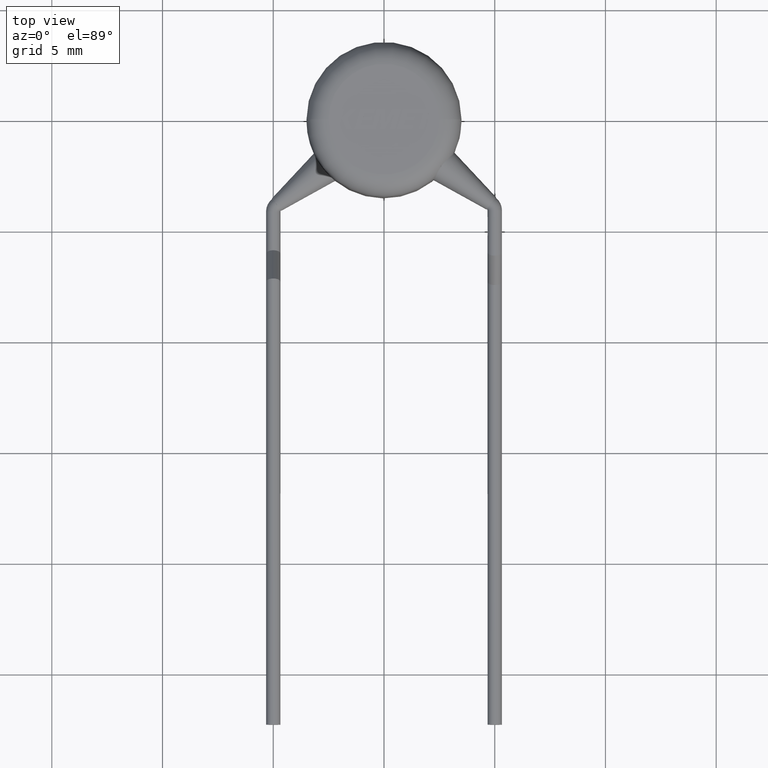
[diagram: clean part render]
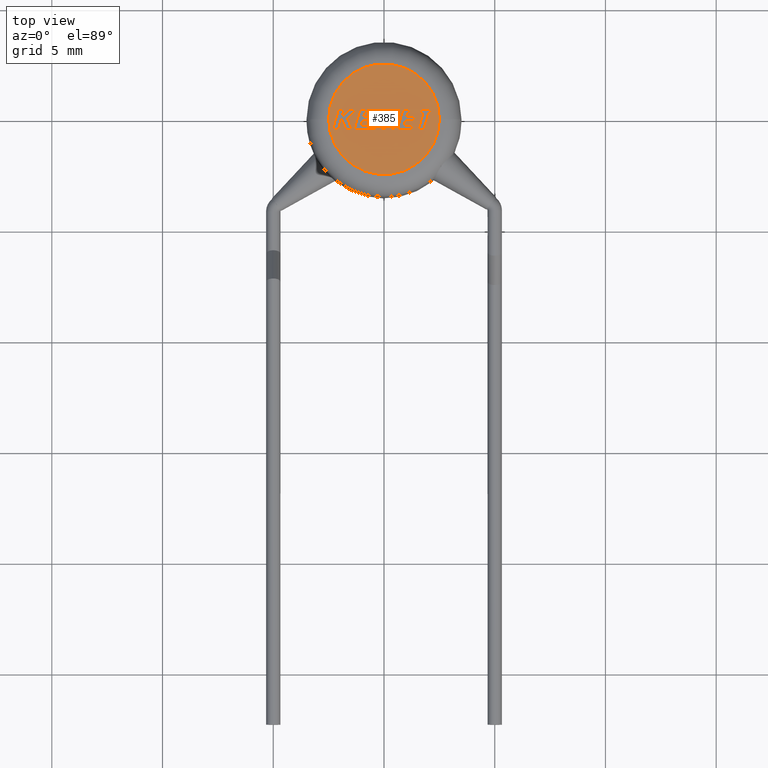
[diagram: same view with one face highlighted and labeled with its STEP entity id]
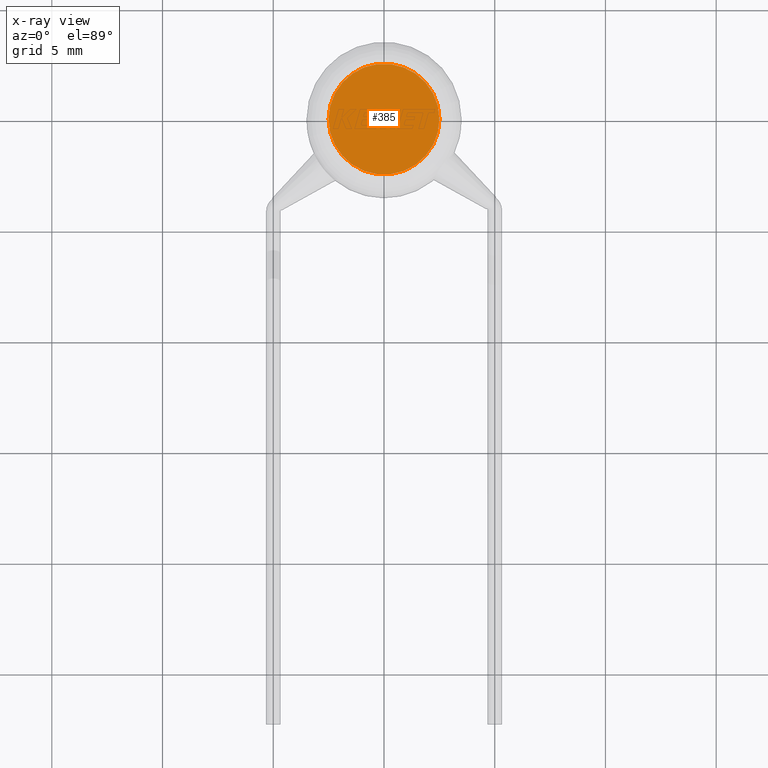
[diagram: x-ray of the same camera — body ghosted, the highlighted face saturated]
A machine part, top view. The second image highlights one B-rep face of the part: STEP entity #385.
The next image is the same camera in x-ray: the body ghosted, the highlighted face saturated — about 0% of this face is hidden behind the body in this view.
In plain terms, the highlighted planar face has unit normal (0, 0, 1).
Its self-contained STEP definition (entity closure, byte-faithful):
#385 = ADVANCED_FACE ( 'NONE', ( #3971 ), #2056, .T. ) ;
#541 = CIRCLE ( 'NONE', #2548, 2.499999999999999600 ) ;
#779 = CARTESIAN_POINT ( 'NONE',  ( 0.0000000000000000000, 0.0000000000000000000, 5.500000000000000000 ) ) ;
#1068 = EDGE_CURVE ( 'NONE', #4197, #3249, #3657, .T. ) ;
#1091 = DIRECTION ( 'NONE',  ( 1.000000000000000000, 0.0000000000000000000, 0.0000000000000000000 ) ) ;
#1167 = DIRECTION ( 'NONE',  ( 1.000000000000000000, 0.0000000000000000000, -0.0000000000000000000 ) ) ;
#1213 = AXIS2_PLACEMENT_3D ( 'NONE', #2724, #3072, #1167 ) ;
#1288 = CARTESIAN_POINT ( 'NONE',  ( 2.499999999999999600, 0.0000000000000000000, 5.500000000000000000 ) ) ;
#1629 = EDGE_CURVE ( 'NONE', #3249, #4197, #541, .T. ) ;
#1775 = DIRECTION ( 'NONE',  ( 0.0000000000000000000, 0.0000000000000000000, 1.000000000000000000 ) ) ;
#1877 = EDGE_LOOP ( 'NONE', ( #2802, #3571 ) ) ;
#2056 = PLANE ( 'NONE',  #1213 ) ;
#2548 = AXIS2_PLACEMENT_3D ( 'NONE', #4096, #1775, #4128 ) ;
#2724 = CARTESIAN_POINT ( 'NONE',  ( 0.0000000000000000000, 0.0000000000000000000, 5.500000000000000000 ) ) ;
#2802 = ORIENTED_EDGE ( 'NONE', *, *, #1068, .T. ) ;
#3072 = DIRECTION ( 'NONE',  ( 0.0000000000000000000, 0.0000000000000000000, 1.000000000000000000 ) ) ;
#3107 = DIRECTION ( 'NONE',  ( 0.0000000000000000000, 0.0000000000000000000, 1.000000000000000000 ) ) ;
#3111 = CARTESIAN_POINT ( 'NONE',  ( -2.499999999999999600, 3.673940397442059400E-016, 5.500000000000000000 ) ) ;
#3249 = VERTEX_POINT ( 'NONE', #3111 ) ;
#3571 = ORIENTED_EDGE ( 'NONE', *, *, #1629, .T. ) ;
#3657 = CIRCLE ( 'NONE', #4208, 2.499999999999999600 ) ;
#3971 = FACE_OUTER_BOUND ( 'NONE', #1877, .T. ) ;
#4096 = CARTESIAN_POINT ( 'NONE',  ( 0.0000000000000000000, 0.0000000000000000000, 5.500000000000000000 ) ) ;
#4128 = DIRECTION ( 'NONE',  ( 1.000000000000000000, 0.0000000000000000000, 0.0000000000000000000 ) ) ;
#4197 = VERTEX_POINT ( 'NONE', #1288 ) ;
#4208 = AXIS2_PLACEMENT_3D ( 'NONE', #779, #3107, #1091 ) ;